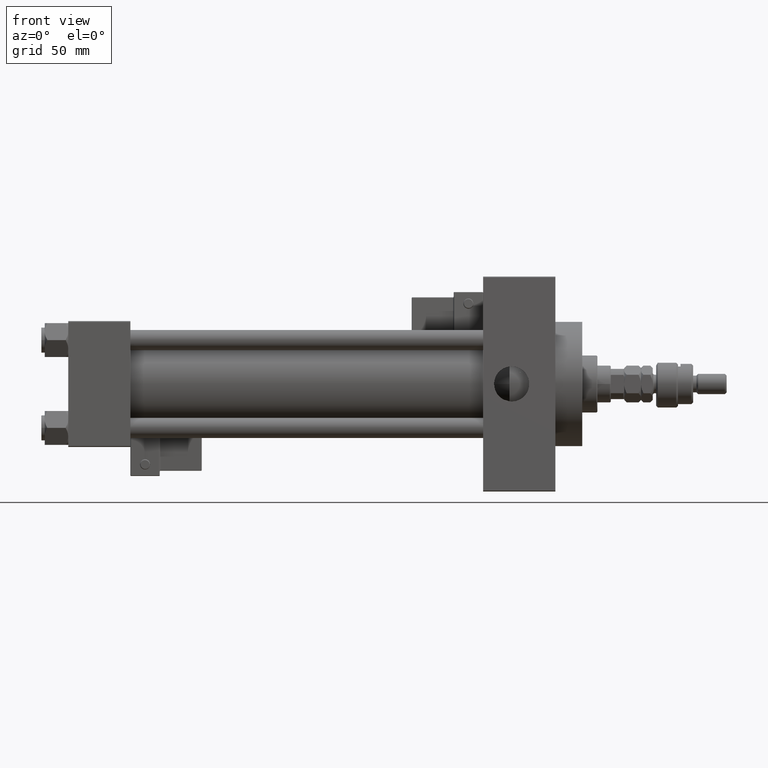
[diagram: clean part render]
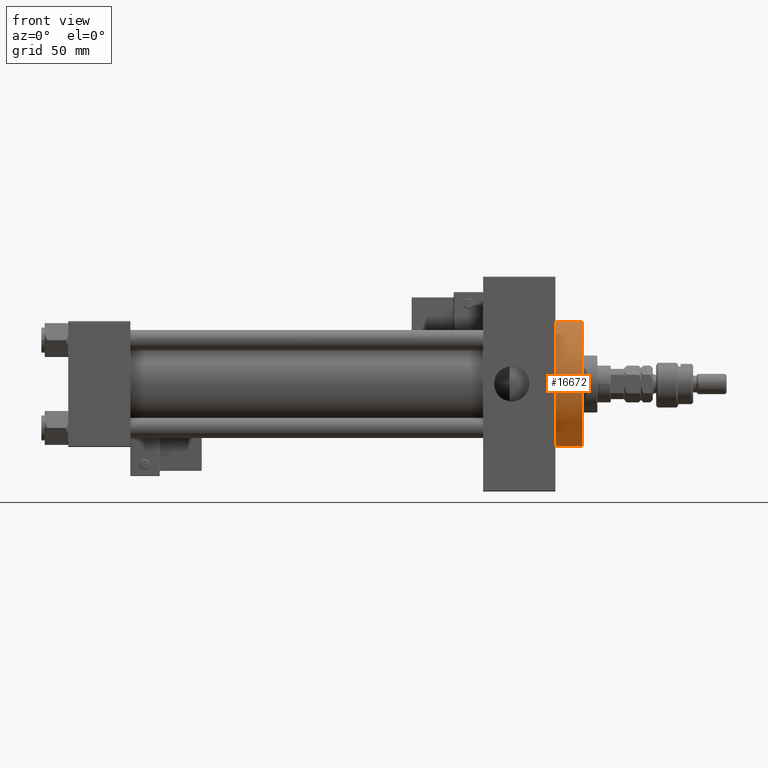
[diagram: same view with one face highlighted and labeled with its STEP entity id]
A machine part, front view. The second image highlights one B-rep face of the part: STEP entity #16672.
In plain terms, the highlighted cylindrical surface (partial cylindrical patch) has radius 37 mm, axis along (-1, -0, -0).
Its self-contained STEP definition (entity closure, byte-faithful):
#4149 = EDGE_LOOP ( 'NONE', ( #10020, #6819, #53659, #45914 ) ) ;
#4360 = VERTEX_POINT ( 'NONE', #23594 ) ;
#4701 = VECTOR ( 'NONE', #53933, 1000.000000000000000 ) ;
#4946 = CARTESIAN_POINT ( 'NONE',  ( 306.0000000000000000, 0.000000000000000000, 37.00000000000000000 ) ) ;
#5329 = VERTEX_POINT ( 'NONE', #4946 ) ;
#5996 = DIRECTION ( 'NONE',  ( 1.000000000000000000, 0.000000000000000000, 0.000000000000000000 ) ) ;
#6819 = ORIENTED_EDGE ( 'NONE', *, *, #23330, .F. ) ;
#6909 = CYLINDRICAL_SURFACE ( 'NONE', #42378, 37.00000000000000000 ) ;
#7492 = LINE ( 'NONE', #48889, #40011 ) ;
#8801 = DIRECTION ( 'NONE',  ( -1.000000000000000000, -0.000000000000000000, -0.000000000000000000 ) ) ;
#8904 = CIRCLE ( 'NONE', #10650, 37.00000000000000000 ) ;
#10020 = ORIENTED_EDGE ( 'NONE', *, *, #22537, .F. ) ;
#10388 = CARTESIAN_POINT ( 'NONE',  ( 306.0000000000000000, 0.000000000000000000, 0.000000000000000000 ) ) ;
#10650 = AXIS2_PLACEMENT_3D ( 'NONE', #10388, #5996, #39627 ) ;
#14554 = CIRCLE ( 'NONE', #45388, 37.00000000000000000 ) ;
#16672 = ADVANCED_FACE ( 'NONE', ( #44705 ), #6909, .T. ) ;
#22537 = EDGE_CURVE ( 'NONE', #24096, #4360, #7492, .T. ) ;
#22673 = DIRECTION ( 'NONE',  ( 0.000000000000000000, 0.000000000000000000, -1.000000000000000000 ) ) ;
#23330 = EDGE_CURVE ( 'NONE', #5329, #24096, #8904, .T. ) ;
#23525 = DIRECTION ( 'NONE',  ( -1.000000000000000000, -0.000000000000000000, -0.000000000000000000 ) ) ;
#23594 = CARTESIAN_POINT ( 'NONE',  ( 290.0000000000000000, 4.531193156845206793E-15, -37.00000000000000000 ) ) ;
#24096 = VERTEX_POINT ( 'NONE', #47378 ) ;
#24816 = DIRECTION ( 'NONE',  ( 0.000000000000000000, 0.000000000000000000, 1.000000000000000000 ) ) ;
#24839 = VERTEX_POINT ( 'NONE', #50976 ) ;
#29784 = CARTESIAN_POINT ( 'NONE',  ( 306.0000000000000000, 0.000000000000000000, 0.000000000000000000 ) ) ;
#37103 = LINE ( 'NONE', #54481, #4701 ) ;
#38203 = EDGE_CURVE ( 'NONE', #5329, #24839, #37103, .T. ) ;
#39485 = DIRECTION ( 'NONE',  ( 1.000000000000000000, 0.000000000000000000, 0.000000000000000000 ) ) ;
#39627 = DIRECTION ( 'NONE',  ( 0.000000000000000000, 0.000000000000000000, -1.000000000000000000 ) ) ;
#40011 = VECTOR ( 'NONE', #23525, 1000.000000000000000 ) ;
#42378 = AXIS2_PLACEMENT_3D ( 'NONE', #29784, #8801, #24816 ) ;
#44705 = FACE_OUTER_BOUND ( 'NONE', #4149, .T. ) ;
#45203 = EDGE_CURVE ( 'NONE', #24839, #4360, #14554, .T. ) ;
#45388 = AXIS2_PLACEMENT_3D ( 'NONE', #48025, #39485, #22673 ) ;
#45914 = ORIENTED_EDGE ( 'NONE', *, *, #45203, .T. ) ;
#47378 = CARTESIAN_POINT ( 'NONE',  ( 306.0000000000000000, 4.531193156845206793E-15, -37.00000000000000000 ) ) ;
#48025 = CARTESIAN_POINT ( 'NONE',  ( 290.0000000000000000, 0.000000000000000000, 0.000000000000000000 ) ) ;
#48889 = CARTESIAN_POINT ( 'NONE',  ( 306.0000000000000000, 4.531193156845206793E-15, -37.00000000000000000 ) ) ;
#50976 = CARTESIAN_POINT ( 'NONE',  ( 290.0000000000000000, 0.000000000000000000, 37.00000000000000000 ) ) ;
#53659 = ORIENTED_EDGE ( 'NONE', *, *, #38203, .T. ) ;
#53933 = DIRECTION ( 'NONE',  ( -1.000000000000000000, -0.000000000000000000, -0.000000000000000000 ) ) ;
#54481 = CARTESIAN_POINT ( 'NONE',  ( 306.0000000000000000, 0.000000000000000000, 37.00000000000000000 ) ) ;